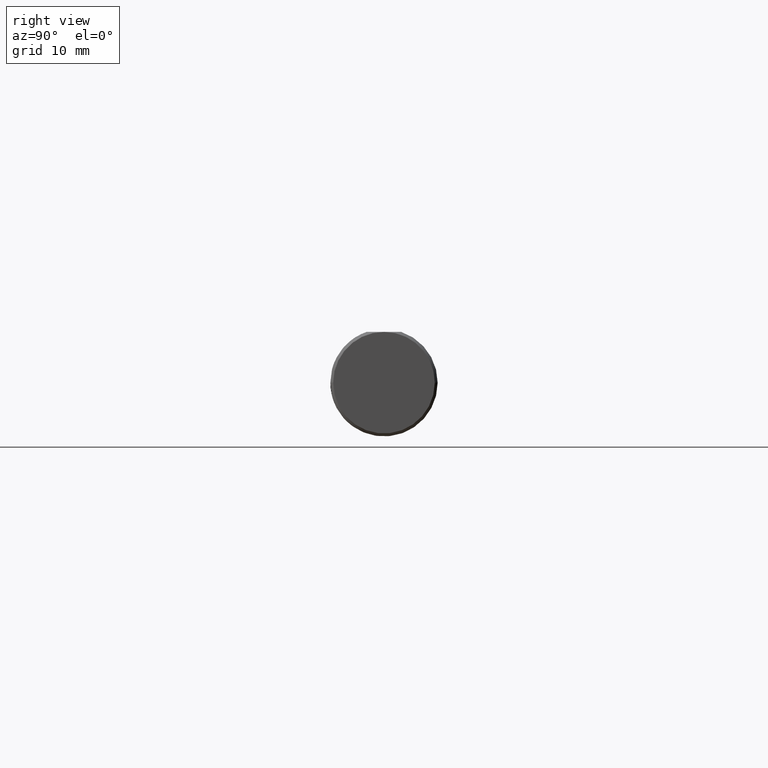
[diagram: clean part render]
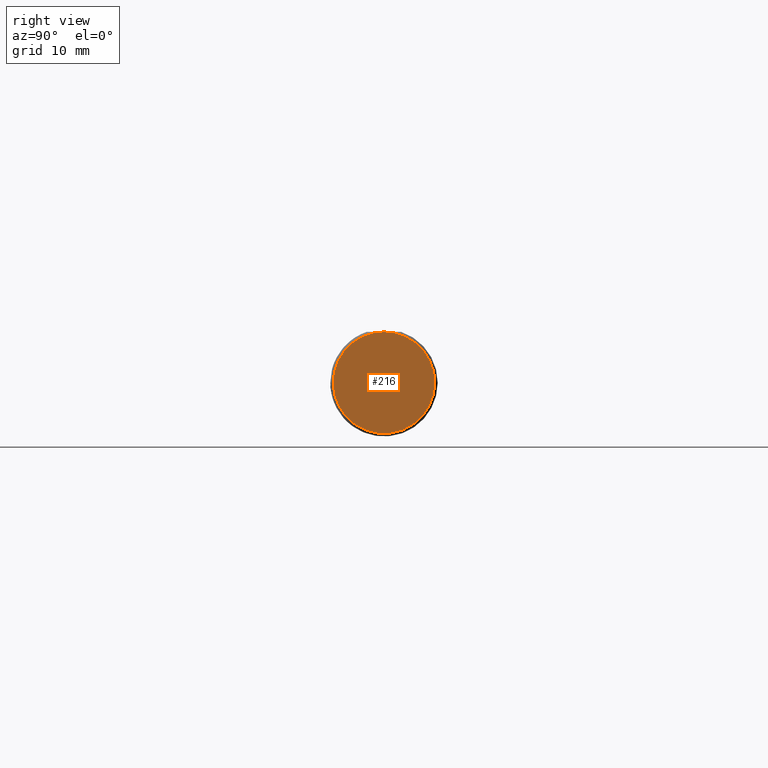
[diagram: same view with one face highlighted and labeled with its STEP entity id]
A machine part, right view. The second image highlights one B-rep face of the part: STEP entity #216.
In plain terms, the highlighted planar face has unit normal (1, 0, -0).
Its self-contained STEP definition (entity closure, byte-faithful):
#14 = DIRECTION ( 'NONE',  ( -1.224646799147352961E-16, 1.000000000000000000, 0.000000000000000000 ) ) ;
#19 = CARTESIAN_POINT ( 'NONE',  ( 1.147187889101280084E-17, 3.673940397442058882E-16, 0.000000000000000000 ) ) ;
#165 = EDGE_LOOP ( 'NONE', ( #800, #563, #266 ) ) ;
#175 = DIRECTION ( 'NONE',  ( 1.000000000000000000, 1.224646799147352961E-16, -0.000000000000000000 ) ) ;
#202 = DIRECTION ( 'NONE',  ( -1.224646799147352961E-16, 1.000000000000000000, 0.000000000000000000 ) ) ;
#216 = ADVANCED_FACE ( 'NONE', ( #256 ), #506, .T. ) ;
#248 = EDGE_CURVE ( 'NONE', #665, #268, #344, .T. ) ;
#256 = FACE_OUTER_BOUND ( 'NONE', #165, .T. ) ;
#260 = DIRECTION ( 'NONE',  ( 1.000000000000000000, 1.224646799147352961E-16, -0.000000000000000000 ) ) ;
#266 = ORIENTED_EDGE ( 'NONE', *, *, #248, .T. ) ;
#268 = VERTEX_POINT ( 'NONE', #670 ) ;
#274 = EDGE_CURVE ( 'NONE', #420, #665, #668, .T. ) ;
#307 = AXIS2_PLACEMENT_3D ( 'NONE', #772, #175, #705 ) ;
#335 = DIRECTION ( 'NONE',  ( 1.000000000000000000, 1.224646799147352961E-16, -0.000000000000000000 ) ) ;
#339 = DIRECTION ( 'NONE',  ( -1.224646799147352961E-16, 1.000000000000000000, 0.000000000000000000 ) ) ;
#340 = AXIS2_PLACEMENT_3D ( 'NONE', #805, #335, #202 ) ;
#344 = CIRCLE ( 'NONE', #826, 0.1773500000000004795 ) ;
#374 = EDGE_CURVE ( 'NONE', #268, #420, #450, .T. ) ;
#420 = VERTEX_POINT ( 'NONE', #573 ) ;
#450 = CIRCLE ( 'NONE', #707, 0.1773500000000004795 ) ;
#506 = PLANE ( 'NONE',  #307 ) ;
#563 = ORIENTED_EDGE ( 'NONE', *, *, #274, .T. ) ;
#573 = CARTESIAN_POINT ( 'NONE',  ( 3.319098987389115832E-17, -0.1773500000000000909, 0.000000000000000000 ) ) ;
#625 = DIRECTION ( 'NONE',  ( 1.000000000000000000, 1.224646799147352961E-16, -0.000000000000000000 ) ) ;
#665 = VERTEX_POINT ( 'NONE', #864 ) ;
#668 = CIRCLE ( 'NONE', #340, 0.1773500000000004795 ) ;
#670 = CARTESIAN_POINT ( 'NONE',  ( -4.969808731120575398E-33, 3.199103279729614531E-16, 0.1773500000000000909 ) ) ;
#705 = DIRECTION ( 'NONE',  ( -1.224646799147352961E-16, 1.000000000000000000, 0.000000000000000000 ) ) ;
#707 = AXIS2_PLACEMENT_3D ( 'NONE', #19, #625, #14 ) ;
#726 = CARTESIAN_POINT ( 'NONE',  ( 1.147187889101280084E-17, 3.673940397442058882E-16, 0.000000000000000000 ) ) ;
#772 = CARTESIAN_POINT ( 'NONE',  ( 1.147187889101284552E-17, 1.404899976408496659E-33, 0.000000000000000000 ) ) ;
#800 = ORIENTED_EDGE ( 'NONE', *, *, #374, .T. ) ;
#805 = CARTESIAN_POINT ( 'NONE',  ( 1.147187889101280084E-17, 3.673940397442058882E-16, 0.000000000000000000 ) ) ;
#826 = AXIS2_PLACEMENT_3D ( 'NONE', #726, #260, #339 ) ;
#864 = CARTESIAN_POINT ( 'NONE',  ( -1.024723209186555973E-17, 0.1773500000000008403, 2.233143438245201271E-17 ) ) ;